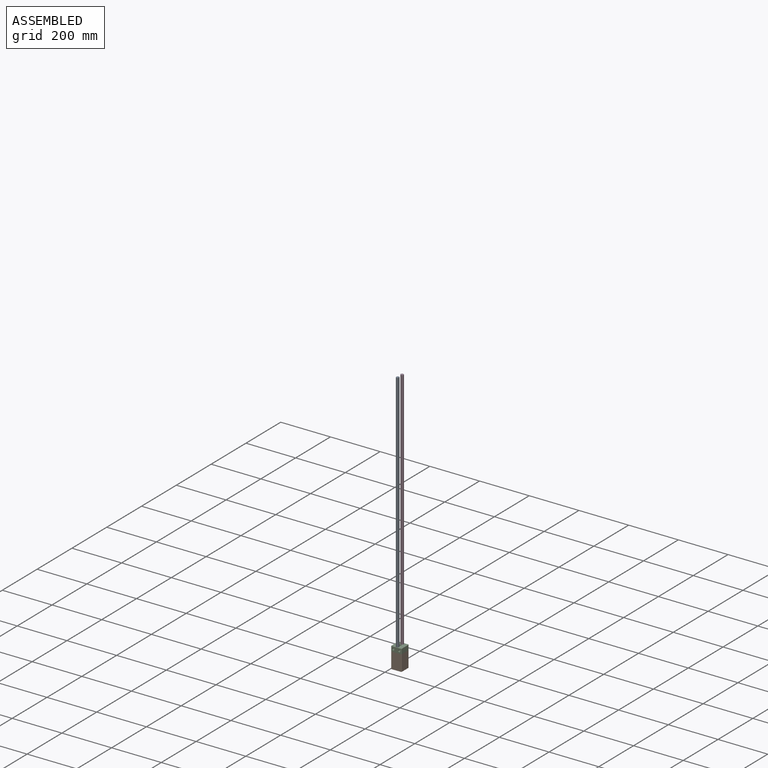
[diagram: assembled view]
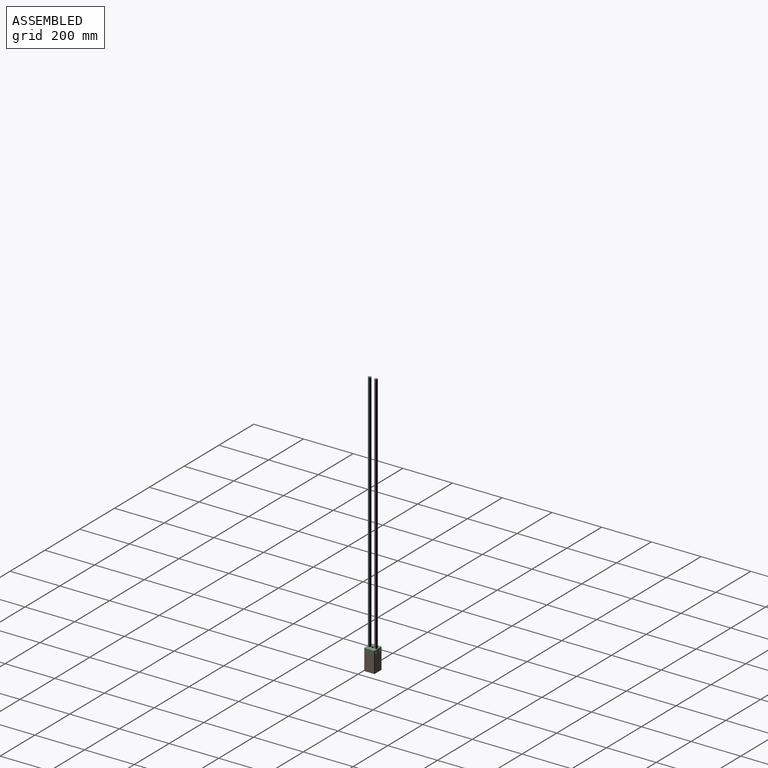
[diagram: assembled view, second angle]
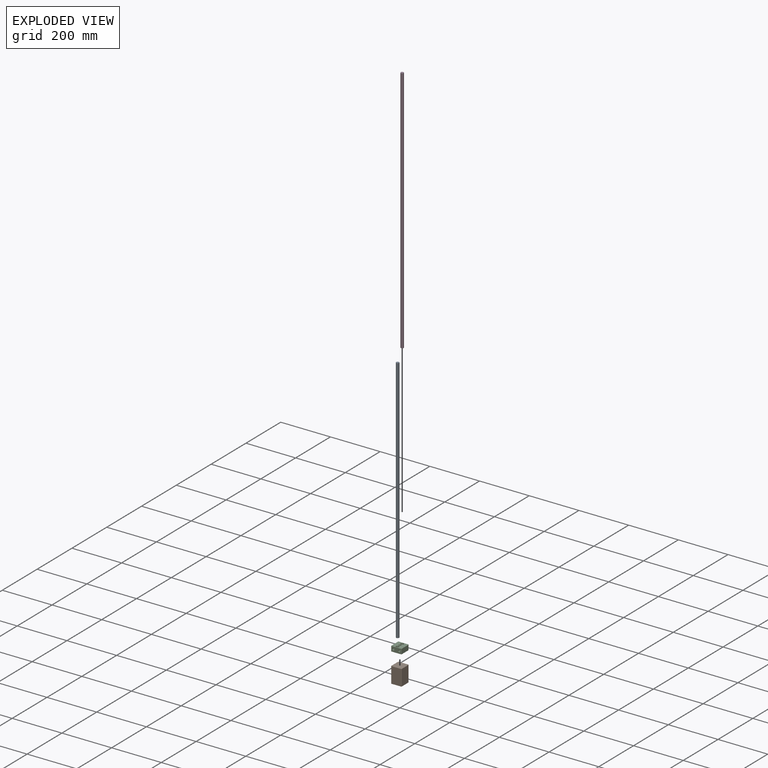
[diagram: exploded view]
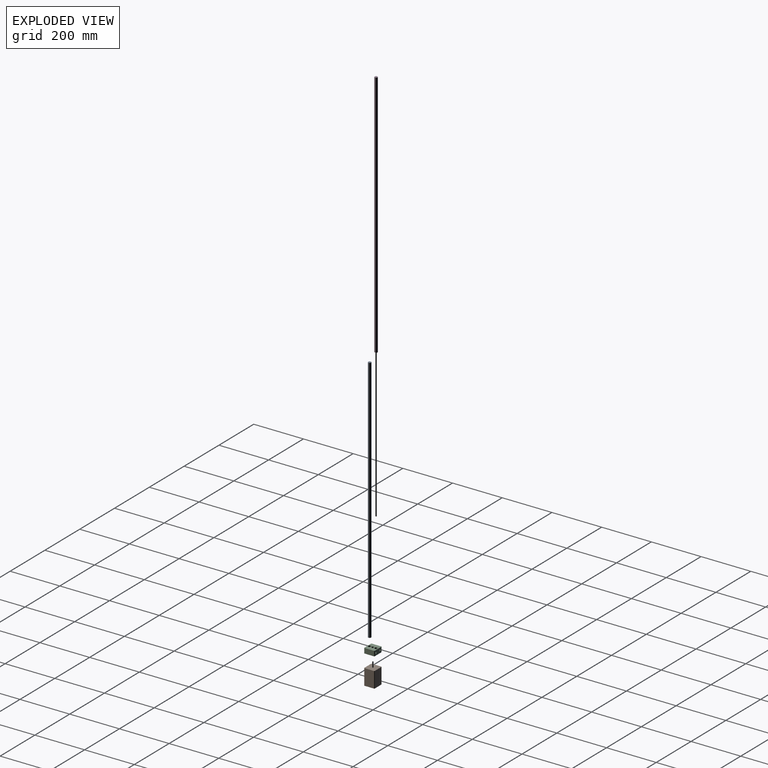
[diagram: exploded view, second angle]
ASSEMBLY  parts=4 mates=3
PART A: 3 faces, bbox 12x12x1000 mm
  f0: cylinder r=6mm len=1000mm, axis (0,0,-1), area 37699.1mm2, adj f1,f2
  f1: plane 12x12mm, normal (0,0,1), area 113.1mm2, adj f0
  f2: plane 12x12mm, normal (0,0,-1), area 113.1mm2, adj f0
PART B: 10 faces, bbox 42x42x64 mm
  f0: plane 64x38mm, normal (-1,0,0), area 2432mm2, adj f1,f7,f8,f9
  f1: cylinder r=2mm len=64mm, axis (0,0,1), area 201.1mm2, adj f0,f2,f8,f9
  f2: plane 64x38mm, normal (0,-1,0), area 2432mm2, adj f1,f3,f8,f9
  f3: cylinder r=2mm len=64mm, axis (0,0,1), area 201.1mm2, adj f2,f4,f8,f9
  f4: plane 64x38mm, normal (1,0,0), area 2432mm2, adj f3,f5,f8,f9
  f5: cylinder r=2mm len=64mm, axis (0,0,1), area 201.1mm2, adj f4,f6,f8,f9
  f6: plane 64x38mm, normal (0,1,0), area 2432mm2, adj f5,f7,f8,f9
  f7: cylinder r=2mm len=64mm, axis (0,0,1), area 201.1mm2, adj f0,f6,f8,f9
  f8: plane 42x42mm, normal (0,0,-1), area 1760.6mm2, adj f0,f1,f2,f3,f4,f5,f6,f7
  f9: plane 42x42mm, normal (0,0,1), area 1760.6mm2, adj f0,f1,f2,f3,f4,f5,f6,f7
PART C: 19 faces, bbox 42x42x20 mm
  f0: plane 38x20mm, normal (-1,0,0), area 760mm2, adj f1,f7,f8,f9
  f1: cylinder r=2mm len=20mm, axis (0,0,-1), area 62.8mm2, adj f0,f2,f8,f9
  f2: plane 38x20mm, normal (0,-1,0), area 653.1mm2, adj f1,f3,f8,f9,f12,f15
  f3: cylinder r=2mm len=20mm, axis (0,0,-1), area 62.8mm2, adj f2,f4,f8,f9
  f4: plane 38x20mm, normal (1,0,0), area 760mm2, adj f3,f5,f8,f9
  f5: cylinder r=2mm len=20mm, axis (0,0,-1), area 62.8mm2, adj f4,f6,f8,f9
  f6: plane 38x20mm, normal (0,1,0), area 703.5mm2, adj f5,f7,f8,f9,f10,f13
  f7: cylinder r=2mm len=20mm, axis (0,0,-1), area 62.8mm2, adj f0,f6,f8,f9
  f8: plane 42x42mm, normal (0,0,1), area 1455.8mm2, adj f0,f1,f2,f3,f4,f5,f6,f7
  f9: plane 42x42mm, normal (0,0,-1), area 1455.8mm2, adj f0,f1,f2,f3,f4,f5,f6,f7
  f10: cylinder r=3mm len=38mm, axis (0,-1,0), area 716.3mm2, adj f6,f11
  f11: plane 8.25x8.25mm, normal (0,-1,0), area 25.2mm2, adj f10,f12
  f12: cylinder r=4.12mm len=8.25mm, axis (0,-1,0), area 103.7mm2, adj f2,f11
  f13: cylinder r=3mm len=38mm, axis (0,-1,0), area 716.3mm2, adj f6,f14
  f14: plane 8.25x8.25mm, normal (0,-1,0), area 25.2mm2, adj f13,f15
  f15: cylinder r=4.12mm len=8.25mm, axis (0,-1,0), area 103.7mm2, adj f2,f14
  f16: cylinder r=5mm len=20mm, axis (0,0,1), area 628.3mm2, adj f8,f9
  f17: cylinder r=6mm len=20mm, axis (0,0,1), area 754mm2, adj f8,f9
  f18: cylinder r=6mm len=20mm, axis (0,0,1), area 754mm2, adj f8,f9
PART D: same geometry as A
PLACE A t=(0,-13,0)mm
PLACE B at identity
PLACE C at identity
PLACE D t=(0,13,0)mm
MATE fastened A.f0 <-> C.f18  axis (0,0,-1) through (0,-13,0)mm
MATE fastened B.f9 <-> C.f16  axis (0,0,1) through (0,0,0)mm
MATE fastened C.f17 <-> D.f0  axis (0,0,1) through (0,13,0)mm
